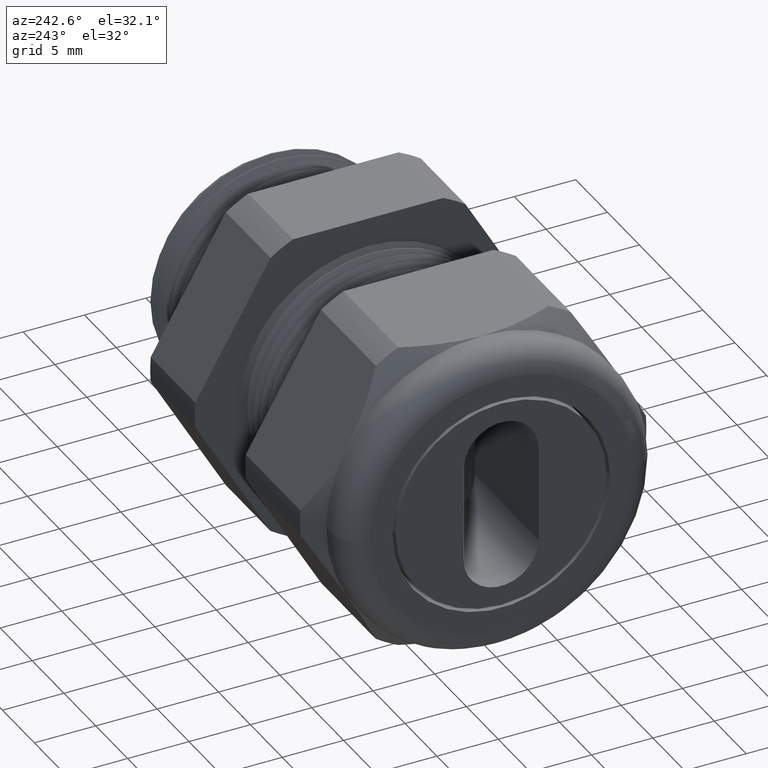
[diagram: clean part render]
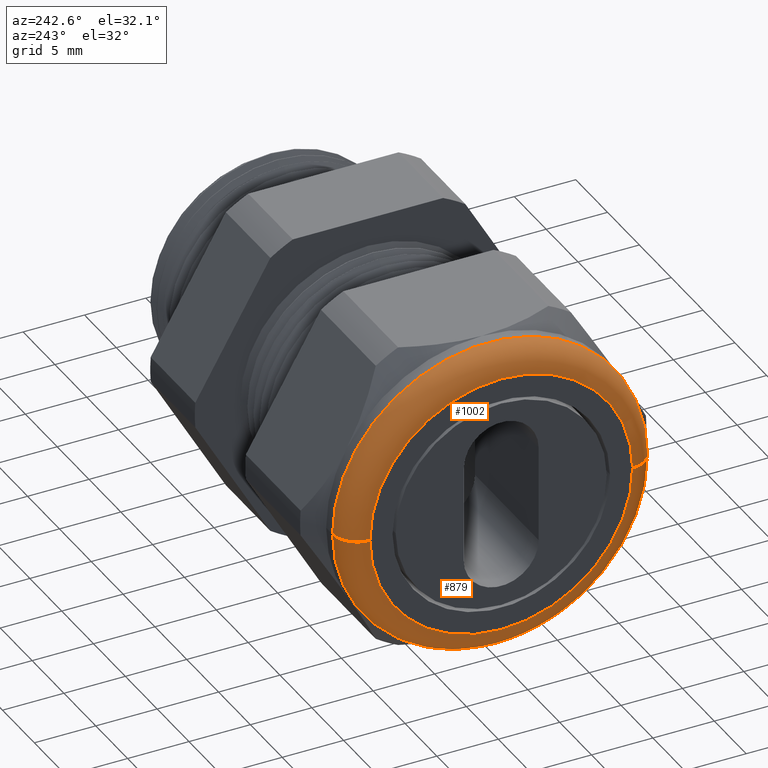
[diagram: same view with one multi-face feature highlighted, each face labeled with its STEP entity id]
A machine part, auxiliary view. The highlighted faces form ONE feature: a constant-radius fillet chain: 2 tangent blend faces with common blend radius 2 mm. The faces share edges in the B-rep.
Their STEP definitions:
[1] entity #1002 (Torus):
#1002 = ADVANCED_FACE ( 'NONE', ( #3024 ), #3017, .T. ) ;
#1003 = EDGE_LOOP ( 'NONE', ( #1004, #1008, #1011, #1049 ) ) ;
#1004 = ORIENTED_EDGE ( 'NONE', *, *, #1005, .F. ) ;
#1005 = EDGE_CURVE ( 'NONE', #1006, #1007, #3013, .T. ) ;
#1006 = VERTEX_POINT ( 'NONE', #3008 ) ;
#1007 = VERTEX_POINT ( 'NONE', #3007 ) ;
#1008 = ORIENTED_EDGE ( 'NONE', *, *, #1009, .T. ) ;
#1009 = EDGE_CURVE ( 'NONE', #1006, #1010, #3006, .T. ) ;
#1010 = VERTEX_POINT ( 'NONE', #3063 ) ;
#1011 = ORIENTED_EDGE ( 'NONE', *, *, #1012, .F. ) ;
#1012 = EDGE_CURVE ( 'NONE', #1048, #1010, #3062, .T. ) ;
#1048 = VERTEX_POINT ( 'NONE', #3123 ) ;
#1049 = ORIENTED_EDGE ( 'NONE', *, *, #1050, .F. ) ;
#1050 = EDGE_CURVE ( 'NONE', #1007, #1048, #3122, .T. ) ;
#3002 = DIRECTION ( 'NONE',  ( 0.0000000000000000000, -1.000000000000000000, -1.224646799147353500E-016 ) ) ;
#3003 = DIRECTION ( 'NONE',  ( -4.591237839507477700E-033, -1.224646799147353200E-016, 1.000000000000000000 ) ) ;
#3004 = CARTESIAN_POINT ( 'NONE',  ( -1.331259842519684900, 0.4212598425196849000, 5.158945177510503700E-017 ) ) ;
#3005 = AXIS2_PLACEMENT_3D ( 'NONE', #3004, #3003, #3002 ) ;
#3006 = CIRCLE ( 'NONE', #3005, 0.07874015748031496000 ) ;
#3007 = CARTESIAN_POINT ( 'NONE',  ( -1.331259842519684900, -0.5000000000000001100, 6.123233995736766000E-017 ) ) ;
#3008 = CARTESIAN_POINT ( 'NONE',  ( -1.331259842519684900, 0.4999999999999998300, 0.0000000000000000000 ) ) ;
#3009 = DIRECTION ( 'NONE',  ( 0.0000000000000000000, -1.000000000000000000, 0.0000000000000000000 ) ) ;
#3010 = DIRECTION ( 'NONE',  ( 1.000000000000000000, -3.749030204222210100E-017, 0.0000000000000000000 ) ) ;
#3011 = CARTESIAN_POINT ( 'NONE',  ( -1.331259842519684900, -1.203564421058727600E-016, 0.0000000000000000000 ) ) ;
#3012 = AXIS2_PLACEMENT_3D ( 'NONE', #3011, #3010, #3009 ) ;
#3013 = CIRCLE ( 'NONE', #3012, 0.5000000000000000000 ) ;
#3014 = DIRECTION ( 'NONE',  ( -3.749030204222210100E-017, -1.000000000000000000, 0.0000000000000000000 ) ) ;
#3015 = DIRECTION ( 'NONE',  ( -1.000000000000000000, 3.749030204222210100E-017, 0.0000000000000000000 ) ) ;
#3016 = AXIS2_PLACEMENT_3D ( 'NONE', #3018, #3015, #3014 ) ;
#3017 = TOROIDAL_SURFACE ( 'NONE', #3016, 0.4212598425196850100, 0.07874015748031496000 ) ;
#3018 = CARTESIAN_POINT ( 'NONE',  ( -1.331259842519684900, -1.203564421058727600E-016, 0.0000000000000000000 ) ) ;
#3024 = FACE_OUTER_BOUND ( 'NONE', #1003, .T. ) ;
#3058 = DIRECTION ( 'NONE',  ( 0.0000000000000000000, -1.000000000000000000, 0.0000000000000000000 ) ) ;
#3059 = DIRECTION ( 'NONE',  ( -1.000000000000000000, 3.749030204222210100E-017, 0.0000000000000000000 ) ) ;
#3060 = CARTESIAN_POINT ( 'NONE',  ( -1.409999999999999900, -1.174044498190836100E-016, 0.0000000000000000000 ) ) ;
#3061 = AXIS2_PLACEMENT_3D ( 'NONE', #3060, #3059, #3058 ) ;
#3062 = CIRCLE ( 'NONE', #3061, 0.4212598425196850100 ) ;
#3063 = CARTESIAN_POINT ( 'NONE',  ( -1.409999999999999900, 0.4212598425196849000, 5.641089586623634000E-017 ) ) ;
#3118 = DIRECTION ( 'NONE',  ( -1.000000000000000000, 0.0000000000000000000, 0.0000000000000000000 ) ) ;
#3119 = DIRECTION ( 'NONE',  ( 0.0000000000000000000, 0.0000000000000000000, -1.000000000000000000 ) ) ;
#3120 = CARTESIAN_POINT ( 'NONE',  ( -1.331259842519684900, -0.4212598425196851800, 0.0000000000000000000 ) ) ;
#3121 = AXIS2_PLACEMENT_3D ( 'NONE', #3120, #3119, #3118 ) ;
#3122 = CIRCLE ( 'NONE', #3121, 0.07874015748031502900 ) ;
#3123 = CARTESIAN_POINT ( 'NONE',  ( -1.409999999999999900, -0.4212598425196851800, 0.0000000000000000000 ) ) ;
[2] entity #879 (Torus):
#470 = EDGE_CURVE ( 'NONE', #1010, #1048, #2242, .T. ) ;
#482 = EDGE_CURVE ( 'NONE', #1007, #1006, #2288, .T. ) ;
#879 = ADVANCED_FACE ( 'NONE', ( #2831 ), #2830, .T. ) ;
#880 = EDGE_LOOP ( 'NONE', ( #881, #882, #883, #884 ) ) ;
#881 = ORIENTED_EDGE ( 'NONE', *, *, #1009, .F. ) ;
#882 = ORIENTED_EDGE ( 'NONE', *, *, #482, .F. ) ;
#883 = ORIENTED_EDGE ( 'NONE', *, *, #1050, .T. ) ;
#884 = ORIENTED_EDGE ( 'NONE', *, *, #470, .F. ) ;
#1006 = VERTEX_POINT ( 'NONE', #3008 ) ;
#1007 = VERTEX_POINT ( 'NONE', #3007 ) ;
#1009 = EDGE_CURVE ( 'NONE', #1006, #1010, #3006, .T. ) ;
#1010 = VERTEX_POINT ( 'NONE', #3063 ) ;
#1048 = VERTEX_POINT ( 'NONE', #3123 ) ;
#1050 = EDGE_CURVE ( 'NONE', #1007, #1048, #3122, .T. ) ;
#2238 = DIRECTION ( 'NONE',  ( 0.0000000000000000000, -1.000000000000000000, 0.0000000000000000000 ) ) ;
#2239 = DIRECTION ( 'NONE',  ( -1.000000000000000000, 3.749030204222210100E-017, 0.0000000000000000000 ) ) ;
#2240 = CARTESIAN_POINT ( 'NONE',  ( -1.409999999999999900, -1.174044498190836100E-016, 0.0000000000000000000 ) ) ;
#2241 = AXIS2_PLACEMENT_3D ( 'NONE', #2240, #2239, #2238 ) ;
#2242 = CIRCLE ( 'NONE', #2241, 0.4212598425196850100 ) ;
#2284 = DIRECTION ( 'NONE',  ( 0.0000000000000000000, -1.000000000000000000, 0.0000000000000000000 ) ) ;
#2285 = DIRECTION ( 'NONE',  ( 1.000000000000000000, -3.749030204222210100E-017, 0.0000000000000000000 ) ) ;
#2286 = CARTESIAN_POINT ( 'NONE',  ( -1.331259842519684900, -1.203564421058727600E-016, 0.0000000000000000000 ) ) ;
#2287 = AXIS2_PLACEMENT_3D ( 'NONE', #2286, #2285, #2284 ) ;
#2288 = CIRCLE ( 'NONE', #2287, 0.5000000000000000000 ) ;
#2826 = DIRECTION ( 'NONE',  ( -3.749030204222210100E-017, -1.000000000000000000, 0.0000000000000000000 ) ) ;
#2827 = DIRECTION ( 'NONE',  ( -1.000000000000000000, 3.749030204222210100E-017, 0.0000000000000000000 ) ) ;
#2828 = CARTESIAN_POINT ( 'NONE',  ( -1.331259842519684900, -1.203564421058727600E-016, 0.0000000000000000000 ) ) ;
#2829 = AXIS2_PLACEMENT_3D ( 'NONE', #2828, #2827, #2826 ) ;
#2830 = TOROIDAL_SURFACE ( 'NONE', #2829, 0.4212598425196850100, 0.07874015748031496000 ) ;
#2831 = FACE_OUTER_BOUND ( 'NONE', #880, .T. ) ;
#3002 = DIRECTION ( 'NONE',  ( 0.0000000000000000000, -1.000000000000000000, -1.224646799147353500E-016 ) ) ;
#3003 = DIRECTION ( 'NONE',  ( -4.591237839507477700E-033, -1.224646799147353200E-016, 1.000000000000000000 ) ) ;
#3004 = CARTESIAN_POINT ( 'NONE',  ( -1.331259842519684900, 0.4212598425196849000, 5.158945177510503700E-017 ) ) ;
#3005 = AXIS2_PLACEMENT_3D ( 'NONE', #3004, #3003, #3002 ) ;
#3006 = CIRCLE ( 'NONE', #3005, 0.07874015748031496000 ) ;
#3007 = CARTESIAN_POINT ( 'NONE',  ( -1.331259842519684900, -0.5000000000000001100, 6.123233995736766000E-017 ) ) ;
#3008 = CARTESIAN_POINT ( 'NONE',  ( -1.331259842519684900, 0.4999999999999998300, 0.0000000000000000000 ) ) ;
#3063 = CARTESIAN_POINT ( 'NONE',  ( -1.409999999999999900, 0.4212598425196849000, 5.641089586623634000E-017 ) ) ;
#3118 = DIRECTION ( 'NONE',  ( -1.000000000000000000, 0.0000000000000000000, 0.0000000000000000000 ) ) ;
#3119 = DIRECTION ( 'NONE',  ( 0.0000000000000000000, 0.0000000000000000000, -1.000000000000000000 ) ) ;
#3120 = CARTESIAN_POINT ( 'NONE',  ( -1.331259842519684900, -0.4212598425196851800, 0.0000000000000000000 ) ) ;
#3121 = AXIS2_PLACEMENT_3D ( 'NONE', #3120, #3119, #3118 ) ;
#3122 = CIRCLE ( 'NONE', #3121, 0.07874015748031502900 ) ;
#3123 = CARTESIAN_POINT ( 'NONE',  ( -1.409999999999999900, -0.4212598425196851800, 0.0000000000000000000 ) ) ;